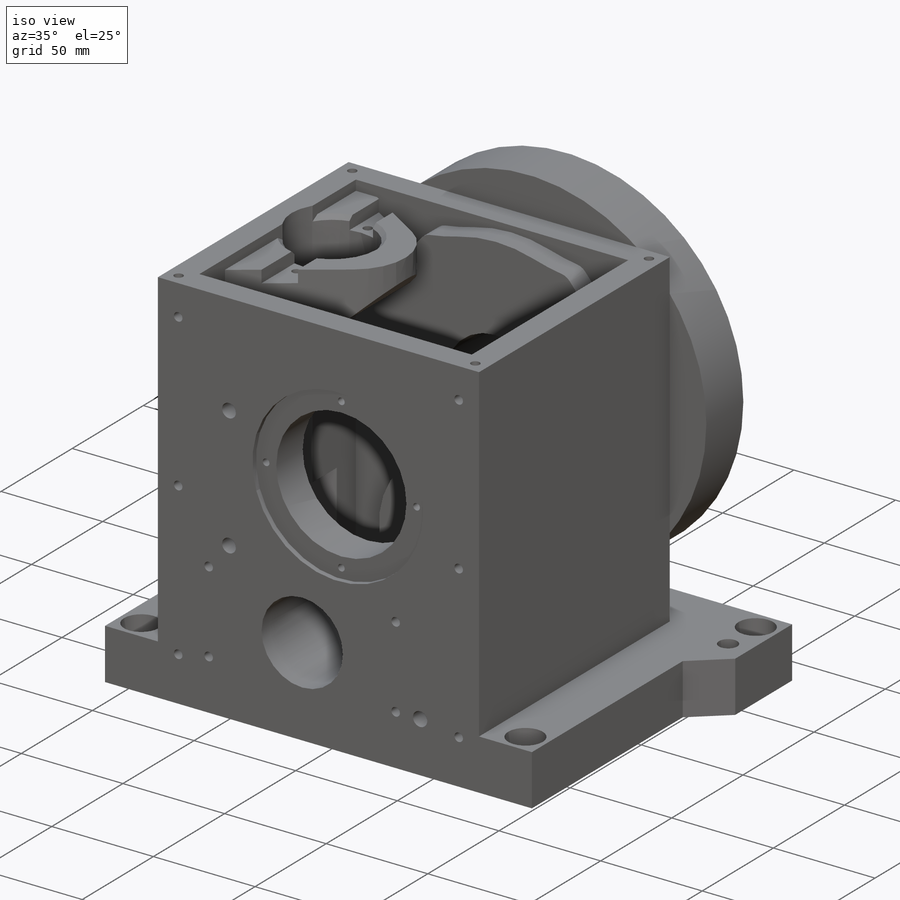
[diagram: iso view]
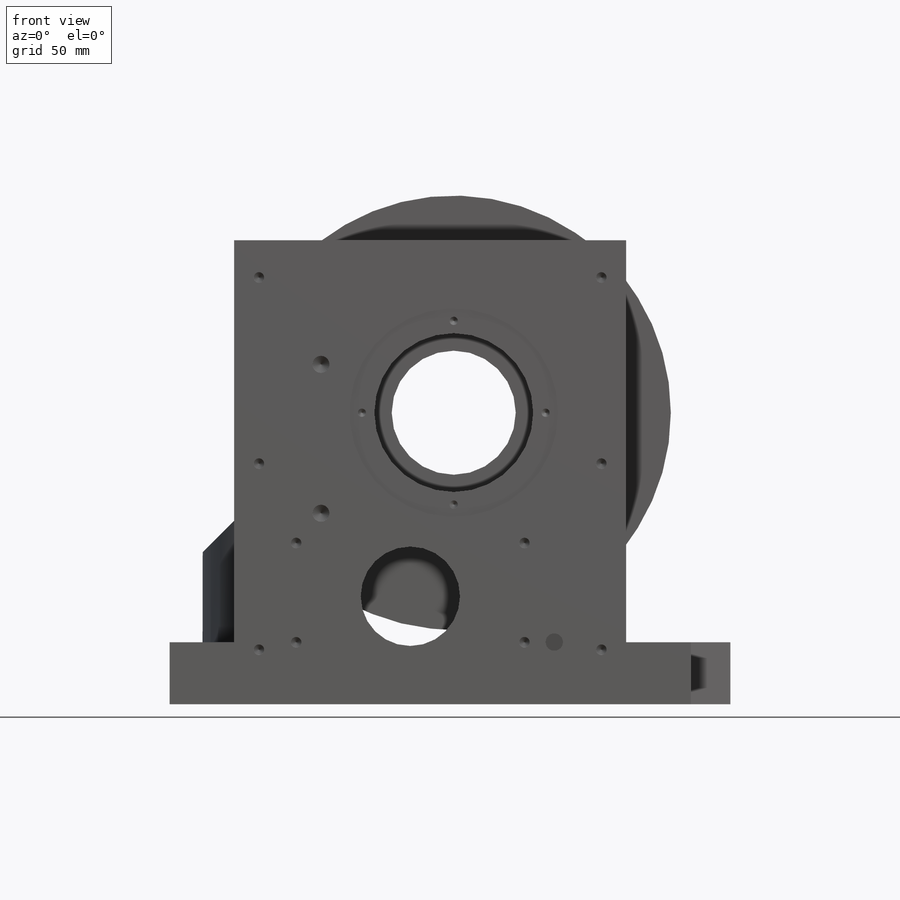
[diagram: front view]
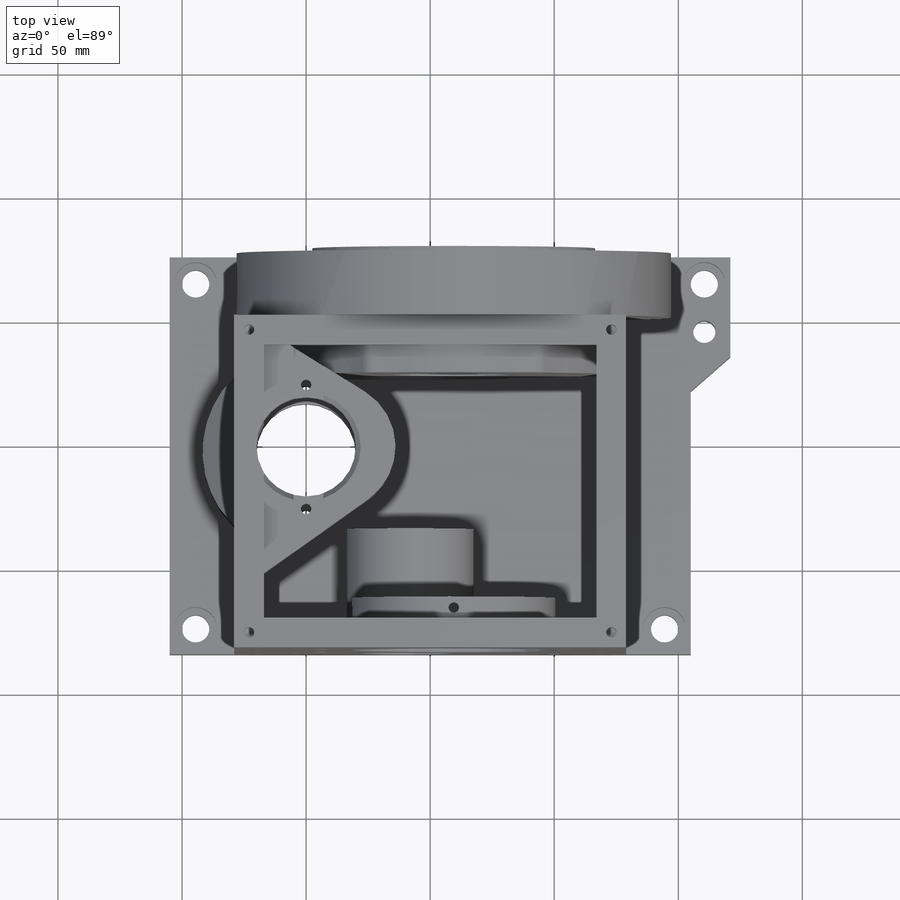
[diagram: top view]
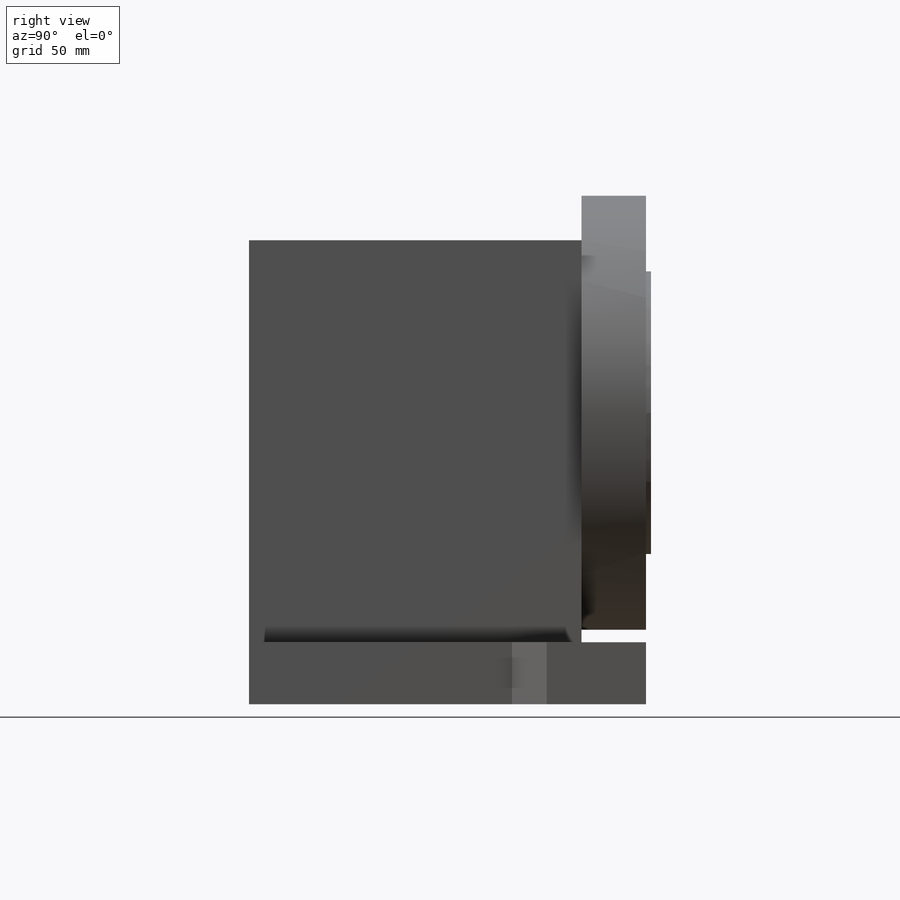
[diagram: right view]
SOLIDWORKS PART (.sldprt)
format: sldprt  version: not decoded by parser v0  size: 1,418,240 bytes
history: native  units: mm
features: sketch x54, cut_extrude x26, extrude x10, thread x10, hole x9, pattern_circular x7, pattern_linear x4, plane x2, chamfer x2, fillet x2, material x1, shell x1 (+16 scaffold rows collapsed)
feature tree (144):
  scaffold x16  (default folders/planes/origin — collapsed)
  material  "Ductile Iron"
  sketch  "Sketch1"  dims[D1=158.0mm D2=187.0mm]
  extrude  "Extrude1"  Depth=134mm
  shell  "Shell1"  Thickness=12mm
  sketch  "Sketch2"  dims[c1.D1=~159.19027mm c1.D2=~159.19027mm c1.D3=175.0mm c2.D1=18.0mm c2.D2=18.0mm]
  extrude  "Extrude2"  Depth=26mm
  sketch  "Sketch3"  dims[D1=5.0mm]
  cut_extrude  "Extrude4"  Depth=11mm
  sketch  "Sketch4"  dims[D1=12.0mm]
  cut_extrude  "Extrude5"  Depth=5mm
  sketch  "Sketch5"  dims[D1=114.0mm]
  extrude  "Extrude6"  Depth=18mm
  sketch  "Sketch6"  dims[D1=50.0mm]
  cut_extrude  "Extrude7"  Depth=109mm
  sketch  "Sketch8"  dims[D1=64.0mm]
  cut_extrude  "Extrude8"  Depth=109mm
  sketch  "Sketch41"  dims[D1=9.0mm]
  extrude  "Extrude42"  Depth=9mm
  sketch  "Sketch9"  dims[D1=10.0mm]
  cut_extrude  "Extrude9"  Depth=2.5mm
  hole  "M5 Tapped Hole7"  Diameter=4.2mm Depth=22mm
  sketch  "Sketch60"  dims[D1=6.4mm]
  sketch  "Sketch59"  dims[hole-wizard template sketch: 47 standard entries collapsed; hole parameters kept: c15.Tap Drill Depth=22.0mm c15.D3=~14.816244mm c15.Drill Angle=118.0deg]
  thread  "Hole Thread10"  Diameter=18mm  [1 undecoded]
  pattern_circular  "CirPattern7"  Count=6 Angle=60deg
  sketch  "Sketch10"  dims[c1.D1=~51.81108mm c1.D2=~51.81108mm c1.D3=40.0mm c2.D1=51.0mm c2.D2=23.5mm]
  cut_extrude  "Extrude10"  Depth=135.5mm
  sketch  "Sketch11"  dims[D1=210.0mm D2=160.0mm D3=26.0mm]
  extrude  "Extrude12"  Depth=25mm
  sketch  "Sketch12"  dims[c1.D2=194.0mm c1.D1=6.0mm c2.D2=92.5mm]
  cut_extrude  "Extrude13"  [1 undecoded]
  sketch  "Sketch13"  dims[D2=17.0mm D1=91.0mm D3=6.0mm D4=3.0mm]
  cut_extrude  "Extrude14"  Depth=45mm
  pattern_circular  "CirPattern1"  Count=2 Angle=180deg
  sketch  "Sketch16"  dims[D1=8.0mm D2=6.0mm]
  cut_extrude  "Extrude15"  Depth=45mm
  pattern_circular  "CirPattern2"  Count=6 Angle=60deg
  sketch  "Sketch17"  dims[c1.D2=8.0mm c1.D3=8.0mm c1.D1=~66.320851mm c2.D1=30.0deg c2.D3=1.0mm]
  cut_extrude  "Extrude16"  Depth=21mm
  sketch  "Sketch18"  dims[c1.D2=6.0mm c1.D3=6.0mm c1.D1=57.0mm c2.D1=120.0deg c2.D3=2.0mm]
  cut_extrude  "Extrude17"  Depth=9mm
  pattern_circular  "CirPattern3"  Count=2 Angle=180deg
  pattern_circular  "CirPattern4"  Count=2 Angle=180deg
  sketch  "Sketch19"  dims[D1=16.0mm D2=54.0mm D3=40.0mm]
  extrude  "Extrude18"  [1 undecoded]
  sketch  "Sketch20"  dims[D1=17.0mm D2=10.5mm D3=10.5mm D4=10.5mm D5=10.5mm D6=10.5mm D7=10.5mm D8=10.5mm D9=10.5mm]
  cut_extrude  "Extrude19"  Depth=11mm
  sketch  "Sketch21"  dims[D1=11.0mm D2=9.0mm D3=30.0mm]
  cut_extrude  "Extrude20"  [1 undecoded]
  sketch  "Sketch22"  dims[c1.D1=~107.026994mm c1.D2=~39.970142mm c1.D3=6.0mm c1.D4=12.0mm c1.D5=12.0mm c1.D6=12.0mm c2.D1=3.0mm c2.D2=31.5mm]
  extrude  "Extrude25"  Depth=11mm
  sketch  "Sketch23"
  cut_extrude  "Extrude26"  Depth=21mm
  sketch  "Sketch24"
  cut_extrude  "Extrude27"  Depth=74mm
  plane  "Plane1"  Offset=5mm
  sketch  "Sketch25"  dims[c1.D2=~19.608895mm c1.D3=26.0mm c1.D6=40.0mm c1.D1=92.0mm c2.D2=53.0mm c2.D4=53.0mm c2.D5=~42.032891mm c3.D5=~67.276692deg c3.D7=10.0mm]
  extrude  "Extrude28"  Depth=23mm
  plane  "Plane2"  Offset=85mm
  sketch  "Sketch26"  dims[c1.D1=147.4mm c2.D1=45.0deg c2.D2=10.0mm c2.D3=23.0mm c2.D4=42.0mm c2.D5=~33.597734mm]
  cut_extrude  "Extrude29"  Depth=73mm
  sketch  "Sketch28"  dims[c1.D1=60.0mm c1.D2=64.0mm c1.D4=~93.809431mm c2.D1=~93.809431mm c2.D4=60.0mm c2.D2=24.0mm c2.D3=79.0mm c3.D4=54.0mm c3.D1=14.0mm c3.D5=~29.393877mm c3.D2=57.0mm]
  extrude  "Extrude36"  Depth=74mm
  sketch  "Sketch36"  dims[D1=12.0mm]
  cut_extrude  "Extrude37"  Depth=52mm
  sketch  "Sketch37"  dims[D1=~9.396717mm]
  cut_extrude  "Extrude38"  Depth=42mm
  sketch  "Sketch38"  dims[c1.D1=~12.232975mm c2.D1=45.0deg c2.D2=~18.520718mm c3.D2=135.0deg c4.D2=~13.754322mm c5.D2=~62.796858deg c5.D3=~28.26607mm]
  cut_extrude  "Extrude39"  Depth=154mm
  sketch  "Sketch35"
  cut_extrude  "Extrude35"  Depth=239mm
  sketch  "Sketch39"  dims[D1=60.0mm]
  cut_extrude  "Extrude40"  Depth=7mm
  sketch  "Sketch40"  dims[D1=40.0mm D2=33.0mm D3=110.0mm D4=145.0mm D5=30.0mm]
  cut_extrude  "Extrude41"  Depth=3mm
  chamfer  "Chamfer1"  Distance=3mm Angle=45deg
  sketch  "Sketch42"  dims[D1=51.0mm]
  extrude  "Extrude43"  Depth=38mm
  sketch  "Sketch43"  dims[D1=12.0mm D2=12.0mm]
  cut_extrude  "Extrude44"  Depth=11mm
  sketch  "Sketch44"
  cut_extrude  "Cut-Extrude1"  Depth=50mm
  chamfer  "Chamfer2"  Distance=2mm Angle=45deg
  hole  "M5 Tapped Hole1"  Diameter=4.2mm Depth=14mm
  sketch  "Sketch47"  dims[D1=6.0mm D2=6.0mm]
  sketch  "Sketch46"  dims[hole-wizard template sketch: 50 standard entries collapsed; hole parameters above]
  thread  "Hole Thread1"  Diameter=10mm  [1 undecoded]
  pattern_linear  "LPattern1"  Count1=2 Count2=2 Spacing1=146mm Spacing2=122mm
  hole  "M5 Tapped Hole2"  Diameter=4.2mm Depth=9mm
  sketch  "3DSketch1"  dims[D1=15.0mm D2=10.0mm]
  sketch  "Sketch48"  dims[hole-wizard template sketch: 47 standard entries collapsed; hole parameters kept: c15.Tap Drill Depth=9.0mm c15.D3=~14.816244mm c15.Drill Angle=118.0deg]
  thread  "Hole Thread2"  Diameter=5mm  [1 undecoded]
  pattern_linear  "LPattern2"  Count1=3 Count2=2 Spacing1=75mm Spacing2=138mm
  hole  "M8 Tapped Hole1"  Diameter=6.8mm Depth=8mm
  sketch  "3DSketch2"  dims[D1=50.0mm D2=35.0mm]
  sketch  "Sketch49"  dims[hole-wizard template sketch: 47 standard entries collapsed; hole parameters kept: c15.Tap Drill Depth=8.0mm c15.D3=~14.816244mm c15.Drill Angle=118.0deg]
  thread  "Hole Thread3"  Diameter=7mm  [1 undecoded]
  pattern_linear  "LPattern3"  Count1=2 Count2=1 Spacing1=60mm Spacing2=140mm
  hole  "M5 Tapped Hole3"  Diameter=4.2mm Depth=9mm
  sketch  "3DSketch3"  dims[c1.D1=25.0mm c1.D2=~61.879776mm c1.D3=~61.879776mm c2.D2=25.0mm]
  sketch  "Sketch50"  dims[hole-wizard template sketch: 47 standard entries collapsed; hole parameters kept: c15.Tap Drill Depth=9.0mm c15.D3=~14.816244mm c15.Drill Angle=118.0deg]
  thread  "Hole Thread4"  Diameter=5mm  [1 undecoded]
  pattern_linear  "LPattern4"  Count1=2 Count2=2 Spacing1=40mm Spacing2=92mm
  sketch  "Sketch52"  dims[D1=7.0mm D2=12.0mm]
  cut_extrude  "Cut-Extrude2"  Depth=10mm
  hole  "M4 Tapped Hole1"  Diameter=3.3mm Depth=10mm
  sketch  "3DSketch4"  dims[c1.D1=~28.337408mm c1.D2=37.0mm c2.D1=37.0mm]
  sketch  "Sketch54"  dims[hole-wizard template sketch: 50 standard entries collapsed; hole parameters above]
  thread  "Hole Thread5"  Diameter=8mm  [1 undecoded]
  pattern_circular  "CirPattern5"  Count=4 Angle=90deg
  hole  "M5 Tapped Hole5"  Diameter=4.2mm Depth=34mm
  sketch  "3DSketch6"  dims[c1.D1=~23.577773mm c1.D2=~23.577773mm c2.D1=5.0mm]
  sketch  "Sketch57"  dims[hole-wizard template sketch: 47 standard entries collapsed; hole parameters kept: c15.Tap Drill Depth=34.0mm c15.D3=~14.816244mm c15.Drill Angle=118.0deg]
  thread  "Hole Thread7"  Diameter=15mm  [1 undecoded]
  pattern_circular  "CirPattern6"  Count=4 Angle=90deg
  hole  "M5 Tapped Hole6"  Diameter=4.2mm Depth=34mm
  sketch  "3DSketch7"  dims[D1=25.0mm D2=25.0mm]
  sketch  "Sketch58"  dims[hole-wizard template sketch: 47 standard entries collapsed; hole parameters kept: c15.Tap Drill Depth=34.0mm c15.D3=~14.816244mm c15.Drill Angle=118.0deg]
  thread  "Hole Thread8"  Diameter=17mm  [1 undecoded]
  thread  "Hole Thread9"  Diameter=17mm  [1 undecoded]
  fillet  "Fillet1"  Radius=100mm
  fillet  "Fillet2"  Radius=10mm
  sketch  "Sketch62"
  cut_extrude  "Cut-Extrude3"  Depth=5mm
  hole  "M5 Tapped Hole9"  Diameter=4.2mm Depth=52mm
  sketch  "Sketch64"  dims[D1=41.0mm D2=4.5mm]
  sketch  "Sketch63"  dims[hole-wizard template sketch: 47 standard entries collapsed; hole parameters kept: c15.Tap Drill Depth=52.0mm c15.D3=~14.816244mm c15.Drill Angle=118.0deg]
  thread  "Hole Thread11"  Diameter=37.568981mm  [1 undecoded]
decode coverage: 117 of 125 modeling features carry decoded parameters
note: ~ marks probable driven/reference dimensions
note: 13 parameter values undecoded
summary: Diameter pulled from absorbed wizard sketch | no parameter record found for 3 features
note: suppression state not decoded; provenance and decode notes live in map.json
